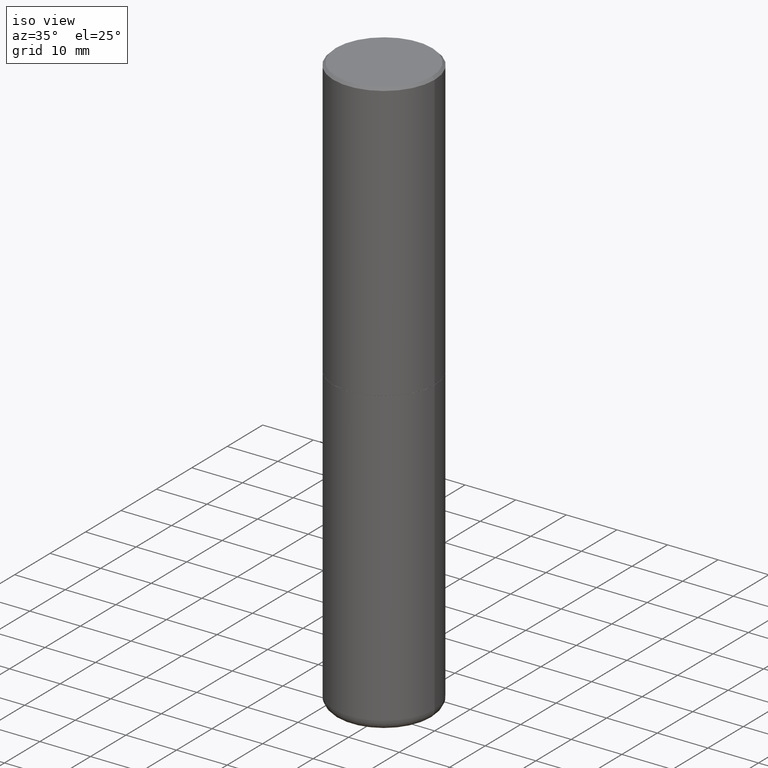
[diagram: clean part render]
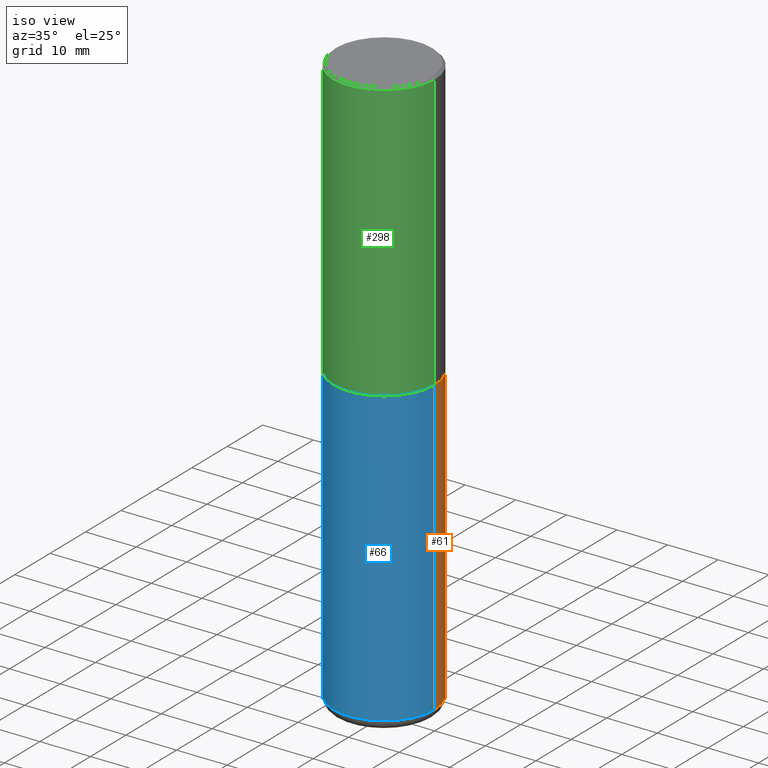
[diagram: same view with three faces highlighted in distinct colors, each labeled with its STEP entity id]
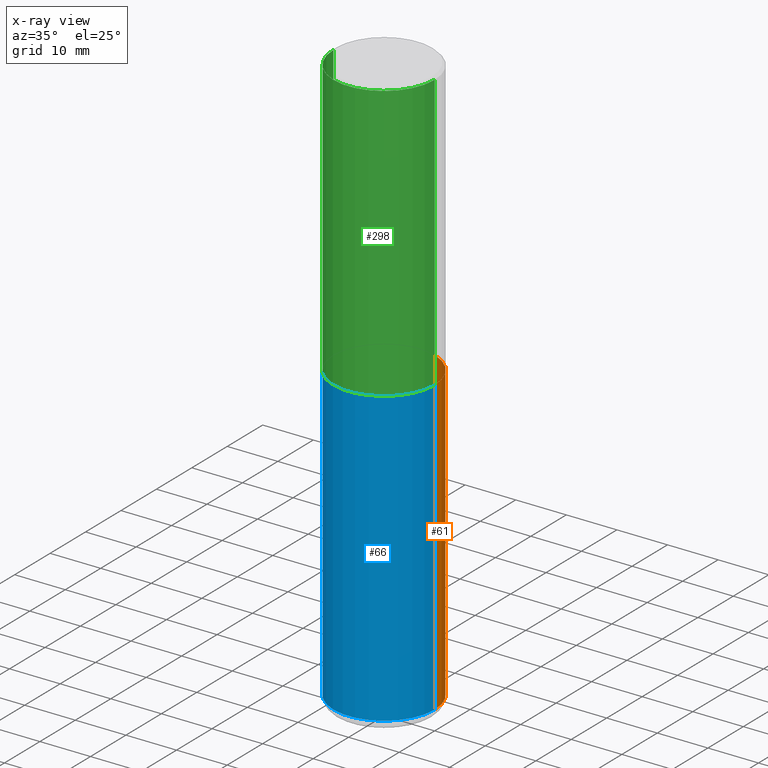
[diagram: x-ray of the same camera — body ghosted, the three highlighted faces saturated]
A machine part, iso view with three faces highlighted in distinct colors.
The next image is the same camera in x-ray (body ghosted, the three faces saturated) — at least one of them is partly hidden behind the body in this view.
Their STEP definitions:

[orange] entity #61 — the highlighted cylindrical surface (partial cylindrical patch) has radius 10 mm, axis along (-0, 0, 1).
#3 = VECTOR ( 'NONE', #293, 39.37007874015748143 ) ;
#8 = ORIENTED_EDGE ( 'NONE', *, *, #74, .F. ) ;
#9 = VECTOR ( 'NONE', #393, 39.37007874015748143 ) ;
#23 = EDGE_LOOP ( 'NONE', ( #371, #283, #42, #8 ) ) ;
#24 = DIRECTION ( 'NONE',  ( 1.000000000000000000, -6.982962677686261977E-15, 0.000000000000000000 ) ) ;
#34 = CARTESIAN_POINT ( 'NONE',  ( 0.3937000000000000499, -1.030964609733602906E-14, -2.165399999999999547 ) ) ;
#42 = ORIENTED_EDGE ( 'NONE', *, *, #262, .F. ) ;
#46 = DIRECTION ( 'NONE',  ( -2.445468806185136597E-29, 3.491481338843145583E-15, 1.000000000000000000 ) ) ;
#49 = CARTESIAN_POINT ( 'NONE',  ( 1.087964617183705369E-28, -1.553325132837927055E-14, -4.448900000000000077 ) ) ;
#58 = DIRECTION ( 'NONE',  ( -2.445468806185136597E-29, 3.491481338843145583E-15, 1.000000000000000000 ) ) ;
#60 = DIRECTION ( 'NONE',  ( -2.445468806185136597E-29, 3.491481338843145583E-15, 1.000000000000000000 ) ) ;
#61 = ADVANCED_FACE ( 'NONE', ( #275 ), #111, .T. ) ;
#74 = EDGE_CURVE ( 'NONE', #110, #240, #414, .T. ) ;
#92 = CARTESIAN_POINT ( 'NONE',  ( 0.3937000000000001054, -2.749192406205084005E-15, 1.919750796630860452E-29 ) ) ;
#110 = VERTEX_POINT ( 'NONE', #265 ) ;
#111 = CYLINDRICAL_SURFACE ( 'NONE', #267, 0.3937000000000001054 ) ;
#135 = EDGE_CURVE ( 'NONE', #270, #366, #386, .T. ) ;
#136 = AXIS2_PLACEMENT_3D ( 'NONE', #49, #46, #24 ) ;
#148 = CARTESIAN_POINT ( 'NONE',  ( -0.3937000000000002164, -1.273584457769175656E-14, -4.448900000000000077 ) ) ;
#163 = AXIS2_PLACEMENT_3D ( 'NONE', #199, #60, #288 ) ;
#186 = CARTESIAN_POINT ( 'NONE',  ( 0.000000000000000000, 0.000000000000000000, 0.000000000000000000 ) ) ;
#199 = CARTESIAN_POINT ( 'NONE',  ( 5.295418152913293224E-29, -7.560453691130945845E-15, -2.165399999999999547 ) ) ;
#222 = DIRECTION ( 'NONE',  ( 1.000000000000000000, -6.982962677686266711E-15, 4.876176775795935793E-29 ) ) ;
#226 = CARTESIAN_POINT ( 'NONE',  ( -0.3937000000000000499, -8.749445759067592624E-15, -2.165399999999999547 ) ) ;
#240 = VERTEX_POINT ( 'NONE', #34 ) ;
#262 = EDGE_CURVE ( 'NONE', #240, #366, #347, .T. ) ;
#264 = EDGE_CURVE ( 'NONE', #110, #270, #396, .T. ) ;
#265 = CARTESIAN_POINT ( 'NONE',  ( 0.3937000000000002164, -1.828244373458435062E-14, -4.448900000000000077 ) ) ;
#267 = AXIS2_PLACEMENT_3D ( 'NONE', #186, #58, #222 ) ;
#270 = VERTEX_POINT ( 'NONE', #148 ) ;
#275 = FACE_OUTER_BOUND ( 'NONE', #23, .T. ) ;
#283 = ORIENTED_EDGE ( 'NONE', *, *, #135, .T. ) ;
#288 = DIRECTION ( 'NONE',  ( 1.000000000000000000, -6.982962677686265133E-15, 0.000000000000000000 ) ) ;
#293 = DIRECTION ( 'NONE',  ( -2.445468806185136877E-29, 3.491481338843145188E-15, 1.000000000000000000 ) ) ;
#347 = CIRCLE ( 'NONE', #163, 0.3937000000000000499 ) ;
#356 = CARTESIAN_POINT ( 'NONE',  ( -0.3937000000000001054, 2.797406750687515181E-15, -1.936584745033357016E-29 ) ) ;
#366 = VERTEX_POINT ( 'NONE', #226 ) ;
#371 = ORIENTED_EDGE ( 'NONE', *, *, #264, .T. ) ;
#386 = LINE ( 'NONE', #356, #3 ) ;
#393 = DIRECTION ( 'NONE',  ( -2.445468806185136877E-29, 3.491481338843145188E-15, 1.000000000000000000 ) ) ;
#396 = CIRCLE ( 'NONE', #136, 0.3937000000000001054 ) ;
#414 = LINE ( 'NONE', #92, #9 ) ;

[blue] entity #66 — the highlighted cylindrical surface (partial cylindrical patch) has radius 10 mm, axis along (-0, 0, 1).
#3 = VECTOR ( 'NONE', #293, 39.37007874015748143 ) ;
#9 = VECTOR ( 'NONE', #393, 39.37007874015748143 ) ;
#34 = CARTESIAN_POINT ( 'NONE',  ( 0.3937000000000000499, -1.030964609733602906E-14, -2.165399999999999547 ) ) ;
#37 = AXIS2_PLACEMENT_3D ( 'NONE', #349, #89, #99 ) ;
#55 = EDGE_CURVE ( 'NONE', #366, #240, #373, .T. ) ;
#66 = ADVANCED_FACE ( 'NONE', ( #319 ), #91, .T. ) ;
#74 = EDGE_CURVE ( 'NONE', #110, #240, #414, .T. ) ;
#89 = DIRECTION ( 'NONE',  ( -2.445468806185136597E-29, 3.491481338843145583E-15, 1.000000000000000000 ) ) ;
#91 = CYLINDRICAL_SURFACE ( 'NONE', #37, 0.3937000000000001054 ) ;
#92 = CARTESIAN_POINT ( 'NONE',  ( 0.3937000000000001054, -2.749192406205084005E-15, 1.919750796630860452E-29 ) ) ;
#99 = DIRECTION ( 'NONE',  ( 1.000000000000000000, -6.982962677686266711E-15, 4.876176775795935793E-29 ) ) ;
#105 = EDGE_LOOP ( 'NONE', ( #172, #332, #200, #344 ) ) ;
#110 = VERTEX_POINT ( 'NONE', #265 ) ;
#122 = EDGE_CURVE ( 'NONE', #270, #110, #314, .T. ) ;
#125 = CARTESIAN_POINT ( 'NONE',  ( 5.295418152913293224E-29, -7.560453691130945845E-15, -2.165399999999999547 ) ) ;
#135 = EDGE_CURVE ( 'NONE', #270, #366, #386, .T. ) ;
#140 = AXIS2_PLACEMENT_3D ( 'NONE', #125, #256, #383 ) ;
#148 = CARTESIAN_POINT ( 'NONE',  ( -0.3937000000000002164, -1.273584457769175656E-14, -4.448900000000000077 ) ) ;
#172 = ORIENTED_EDGE ( 'NONE', *, *, #135, .F. ) ;
#182 = AXIS2_PLACEMENT_3D ( 'NONE', #261, #322, #228 ) ;
#200 = ORIENTED_EDGE ( 'NONE', *, *, #74, .T. ) ;
#226 = CARTESIAN_POINT ( 'NONE',  ( -0.3937000000000000499, -8.749445759067592624E-15, -2.165399999999999547 ) ) ;
#228 = DIRECTION ( 'NONE',  ( 1.000000000000000000, -6.982962677686261977E-15, 0.000000000000000000 ) ) ;
#240 = VERTEX_POINT ( 'NONE', #34 ) ;
#256 = DIRECTION ( 'NONE',  ( -2.445468806185136597E-29, 3.491481338843145583E-15, 1.000000000000000000 ) ) ;
#261 = CARTESIAN_POINT ( 'NONE',  ( 1.087964617183705369E-28, -1.553325132837927055E-14, -4.448900000000000077 ) ) ;
#265 = CARTESIAN_POINT ( 'NONE',  ( 0.3937000000000002164, -1.828244373458435062E-14, -4.448900000000000077 ) ) ;
#270 = VERTEX_POINT ( 'NONE', #148 ) ;
#293 = DIRECTION ( 'NONE',  ( -2.445468806185136877E-29, 3.491481338843145188E-15, 1.000000000000000000 ) ) ;
#314 = CIRCLE ( 'NONE', #182, 0.3937000000000001054 ) ;
#319 = FACE_OUTER_BOUND ( 'NONE', #105, .T. ) ;
#322 = DIRECTION ( 'NONE',  ( -2.445468806185136597E-29, 3.491481338843145583E-15, 1.000000000000000000 ) ) ;
#332 = ORIENTED_EDGE ( 'NONE', *, *, #122, .T. ) ;
#344 = ORIENTED_EDGE ( 'NONE', *, *, #55, .F. ) ;
#349 = CARTESIAN_POINT ( 'NONE',  ( 0.000000000000000000, 0.000000000000000000, 0.000000000000000000 ) ) ;
#356 = CARTESIAN_POINT ( 'NONE',  ( -0.3937000000000001054, 2.797406750687515181E-15, -1.936584745033357016E-29 ) ) ;
#366 = VERTEX_POINT ( 'NONE', #226 ) ;
#373 = CIRCLE ( 'NONE', #140, 0.3937000000000000499 ) ;
#383 = DIRECTION ( 'NONE',  ( 1.000000000000000000, -6.982962677686265133E-15, 0.000000000000000000 ) ) ;
#386 = LINE ( 'NONE', #356, #3 ) ;
#393 = DIRECTION ( 'NONE',  ( -2.445468806185136877E-29, 3.491481338843145188E-15, 1.000000000000000000 ) ) ;
#414 = LINE ( 'NONE', #92, #9 ) ;

[green] entity #298 — the highlighted cylindrical surface (partial cylindrical patch) has radius 10 mm, axis along (-0, 0, 1).
#22 = CARTESIAN_POINT ( 'NONE',  ( 0.000000000000000000, 0.000000000000000000, 0.000000000000000000 ) ) ;
#30 = CARTESIAN_POINT ( 'NONE',  ( -0.3937000000000000499, 2.679362779428219918E-15, -0.02000000000000008715 ) ) ;
#71 = ORIENTED_EDGE ( 'NONE', *, *, #168, .F. ) ;
#81 = CIRCLE ( 'NONE', #324, 0.3937000000000000499 ) ;
#84 = VERTEX_POINT ( 'NONE', #30 ) ;
#90 = FACE_OUTER_BOUND ( 'NONE', #235, .T. ) ;
#96 = CARTESIAN_POINT ( 'NONE',  ( 4.890937612370294178E-31, -6.982962677686321191E-17, -0.02000000000000008715 ) ) ;
#101 = DIRECTION ( 'NONE',  ( -2.445468806185136597E-29, 3.491481338843145583E-15, 1.000000000000000000 ) ) ;
#116 = CYLINDRICAL_SURFACE ( 'NONE', #360, 0.3937000000000001609 ) ;
#129 = VECTOR ( 'NONE', #255, 39.37007874015748143 ) ;
#147 = ORIENTED_EDGE ( 'NONE', *, *, #321, .T. ) ;
#150 = VECTOR ( 'NONE', #211, 39.37007874015748143 ) ;
#154 = LINE ( 'NONE', #318, #150 ) ;
#156 = CARTESIAN_POINT ( 'NONE',  ( 5.292972684107107621E-29, -7.556962209792102838E-15, -2.164399999999999658 ) ) ;
#159 = DIRECTION ( 'NONE',  ( -2.445468806185136597E-29, 3.491481338843145583E-15, 1.000000000000000000 ) ) ;
#165 = EDGE_CURVE ( 'NONE', #380, #181, #328, .T. ) ;
#168 = EDGE_CURVE ( 'NONE', #84, #368, #81, .T. ) ;
#173 = DIRECTION ( 'NONE',  ( 1.000000000000000000, -6.982962677686266711E-15, 4.876176775795935793E-29 ) ) ;
#181 = VERTEX_POINT ( 'NONE', #387 ) ;
#211 = DIRECTION ( 'NONE',  ( -2.445468806185136877E-29, 3.491481338843145188E-15, 1.000000000000000000 ) ) ;
#235 = EDGE_LOOP ( 'NONE', ( #401, #300, #147, #71 ) ) ;
#252 = CARTESIAN_POINT ( 'NONE',  ( 0.3937000000000000499, -2.770807688499515734E-15, -0.02000000000000008715 ) ) ;
#255 = DIRECTION ( 'NONE',  ( -2.445468806185136877E-29, 3.491481338843145188E-15, 1.000000000000000000 ) ) ;
#258 = DIRECTION ( 'NONE',  ( -2.445468806185136597E-29, 3.491481338843145583E-15, 1.000000000000000000 ) ) ;
#298 = ADVANCED_FACE ( 'NONE', ( #90 ), #116, .T. ) ;
#300 = ORIENTED_EDGE ( 'NONE', *, *, #165, .T. ) ;
#318 = CARTESIAN_POINT ( 'NONE',  ( 0.3937000000000001609, -2.749192406205084400E-15, 1.919750796630860732E-29 ) ) ;
#321 = EDGE_CURVE ( 'NONE', #181, #368, #154, .T. ) ;
#324 = AXIS2_PLACEMENT_3D ( 'NONE', #96, #101, #415 ) ;
#328 = CIRCLE ( 'NONE', #418, 0.3937000000000002720 ) ;
#331 = EDGE_CURVE ( 'NONE', #380, #84, #384, .T. ) ;
#339 = CARTESIAN_POINT ( 'NONE',  ( -0.3937000000000001609, 2.797406750687515575E-15, -1.936584745033357296E-29 ) ) ;
#360 = AXIS2_PLACEMENT_3D ( 'NONE', #22, #258, #173 ) ;
#368 = VERTEX_POINT ( 'NONE', #252 ) ;
#380 = VERTEX_POINT ( 'NONE', #410 ) ;
#384 = LINE ( 'NONE', #339, #129 ) ;
#387 = CARTESIAN_POINT ( 'NONE',  ( 0.3937000000000002720, -1.030615461599718763E-14, -2.164399999999999658 ) ) ;
#388 = DIRECTION ( 'NONE',  ( 1.000000000000000000, -6.982962677686269077E-15, 0.000000000000000000 ) ) ;
#401 = ORIENTED_EDGE ( 'NONE', *, *, #331, .F. ) ;
#410 = CARTESIAN_POINT ( 'NONE',  ( -0.3937000000000003830, -1.015989167596963746E-15, -2.164399999999999658 ) ) ;
#415 = DIRECTION ( 'NONE',  ( 1.000000000000000000, -6.982962677686265922E-15, 0.000000000000000000 ) ) ;
#418 = AXIS2_PLACEMENT_3D ( 'NONE', #156, #159, #388 ) ;